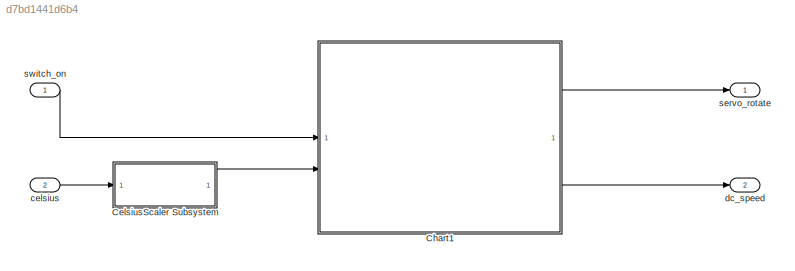
MODEL slx_d7bd1441d6b4
KIND model
CONFIG AbsTol = auto
CONFIG EnableMultiTasking = off
CONFIG FixedStep = 0.1
CONFIG MaxStep = auto
CONFIG MinStep = auto
CONFIG RelTol = 1e-3
CONFIG SampleTimeConstraint = Unconstrained
CONFIG SolverName = FixedStepDiscrete
CONFIG StartTime = 0.0
CONFIG StopTime = 20.0
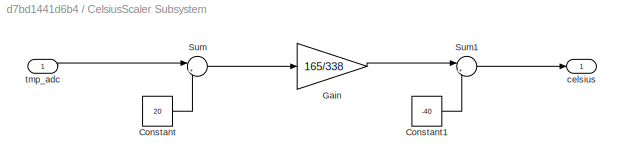
BLOCK [SubSystem] CelsiusScaler Subsystem
BLOCK [Constant] CelsiusScaler Subsystem/Constant
  Value = 20
BLOCK [Constant] CelsiusScaler Subsystem/Constant1
  Value = -40
BLOCK [Gain] CelsiusScaler Subsystem/Gain
  Gain = 165/338
BLOCK [Sum] CelsiusScaler Subsystem/Sum
  Inputs = |+-
BLOCK [Sum] CelsiusScaler Subsystem/Sum1
  Inputs = |++
BLOCK [Outport] CelsiusScaler Subsystem/celsius
BLOCK [Inport] CelsiusScaler Subsystem/tmp_adc
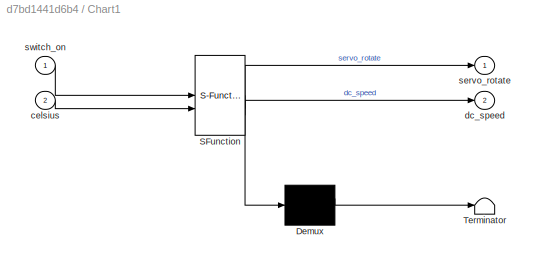
BLOCK [SubSystem] Chart1
  ErrorFcn = Stateflow.Translate.translate
  PermitHierarchicalResolution = ExplicitOnly
  SFBlockType = Chart
  TreatAsAtomicUnit = on
BLOCK [Demux] Chart1/ Demux 
  Outputs = 1
BLOCK [S-Function] Chart1/ SFunction 
  EnableBusSupport = on
  FunctionName = sf_sfun
  PortCounts = [2 3]
  SFcnIsStateOwnerBlock = off
  SFunctionDeploymentMode = off
  Tag = Stateflow S-Function 2
BLOCK [Terminator] Chart1/ Terminator 
BLOCK [Inport] Chart1/celsius
  Port = 2
BLOCK [Outport] Chart1/dc_speed
  Port = 2
BLOCK [Outport] Chart1/servo_rotate
BLOCK [Inport] Chart1/switch_on
BLOCK [Inport] celsius
  Port = 2
BLOCK [Outport] dc_speed
  Port = 2
BLOCK [Outport] servo_rotate
BLOCK [Inport] switch_on
LINE CelsiusScaler Subsystem/Constant1:1 -> CelsiusScaler Subsystem/Sum1:2
LINE CelsiusScaler Subsystem/Constant:1 -> CelsiusScaler Subsystem/Sum:2
LINE CelsiusScaler Subsystem/Gain:1 -> CelsiusScaler Subsystem/Sum1:1
LINE CelsiusScaler Subsystem/Sum1:1 -> CelsiusScaler Subsystem/celsius:1
LINE CelsiusScaler Subsystem/Sum:1 -> CelsiusScaler Subsystem/Gain:1
LINE CelsiusScaler Subsystem/tmp_adc:1 -> CelsiusScaler Subsystem/Sum:1
LINE CelsiusScaler Subsystem:1 -> Chart1:2
LINE Chart1:1 -> servo_rotate:1
LINE Chart1:2 -> dc_speed:1
LINE celsius:1 -> CelsiusScaler Subsystem:1
LINE switch_on:1 -> Chart1:1
CHART Chart1 states=6 transitions=10
  STATE_LABEL 'DC_Motor'
  STATE_LABEL 'check'
  STATE_LABEL '[ctr_dc < (DC_PERIOD / STEP_SIZE) - 1]{ctr_dc = ctr_dc + 1}'
  STATE_LABEL '[ctr_dc >= (DC_PERIOD / STEP_SIZE) - 1]{dc_speed = (celsius - 20) * 255 / (16530 / 60); ctr_dc = 0;}'
  STATE_LABEL 'check'
  STATE_LABEL 'Servo_Motor'
  STATE_LABEL 'Natural'
  STATE_LABEL 'ClockWise'
  STATE_LABEL 'Counter_ClockWise'
  STATE_LABEL '[ctr_servo < ((SLOW_MODE_DURATION - (switch_on * (SLOW_MODE_DURATION - FAST_MODE_DURATION))) / STEP_SIZE) - 1]{ctr_servo = ctr_servo + 1}'
  STATE_LABEL '[ctr_servo >= (SERVO_MAX_ANGLE / SERVO_ANGLE_CHANGE) - 1]{servo_rotate = 0; ctr_servo = 0}'
  STATE_LABEL '[ctr_servo >= ((SLOW_MODE_DURATION - (switch_on * (SLOW_MODE_DURATION - FAST_MODE_DURATION))) / STEP_SIZE) - 1]{servo_rotate = 1; ctr_servo = 0}'
  STATE_LABEL '[ctr_servo < (SERVO_MAX_ANGLE / SERVO_ANGLE_CHANGE) - 1]{ctr_servo = ctr_servo + 1}'
  STATE_LABEL '[ctr_servo >= (SERVO_MAX_ANGLE / SERVO_ANGLE_CHANGE) - 1]{servo_rotate = -1; ctr_servo = 0}'
  STATE_LABEL '[ctr_servo < (SERVO_MAX_ANGLE / SERVO_ANGLE_CHANGE) - 1]{ctr_servo = ctr_servo + 1}'
  STATE_LABEL 'Natural'
  STATE_LABEL 'ClockWise'
  STATE_LABEL 'Counter_ClockWise'
CHART  states=0 transitions=0
